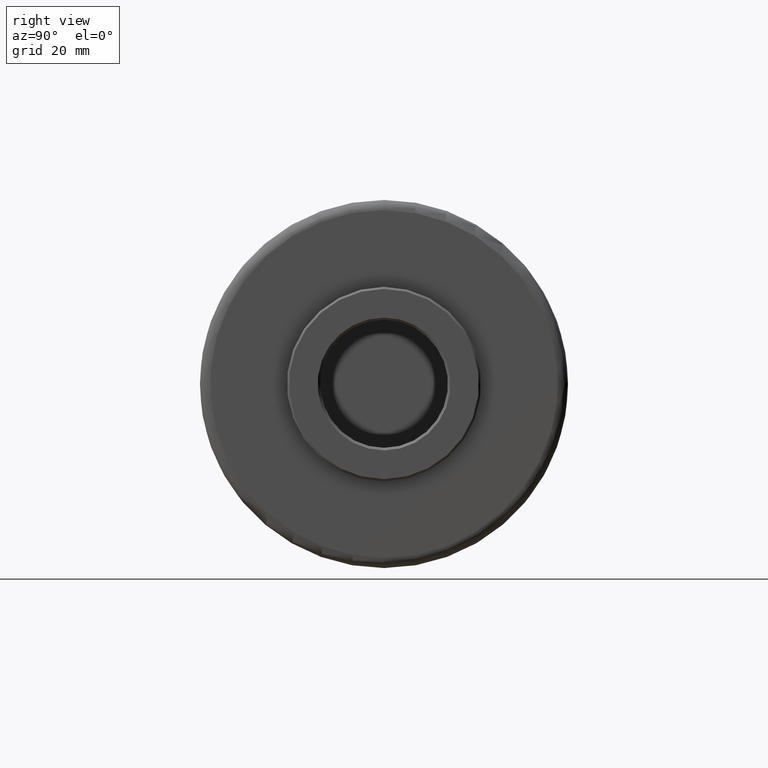
[diagram: clean part render]
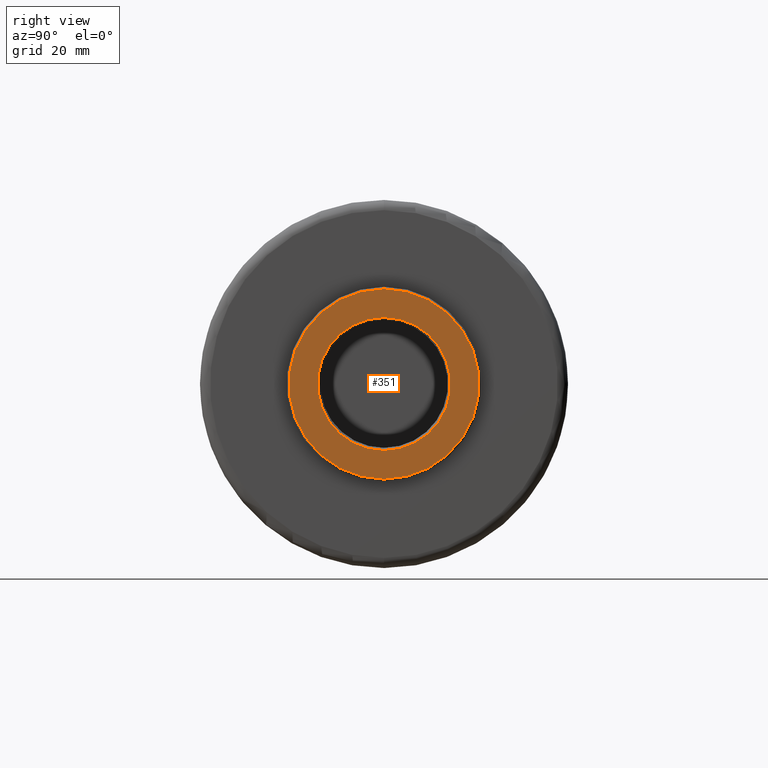
[diagram: same view with one face highlighted and labeled with its STEP entity id]
A machine part, right view. The second image highlights one B-rep face of the part: STEP entity #351.
In plain terms, the highlighted planar face has unit normal (1, -0, 0).
Its self-contained STEP definition (entity closure, byte-faithful):
#65 = DIRECTION ( 'NONE',  ( 0.0000000000000000000, 0.0000000000000000000, 1.000000000000000000 ) ) ;
#89 = DIRECTION ( 'NONE',  ( 1.000000000000000000, -0.0000000000000000000, 0.0000000000000000000 ) ) ;
#93 = PLANE ( 'NONE',  #666 ) ;
#128 = EDGE_CURVE ( 'NONE', #1260, #1362, #534, .T. ) ;
#209 = DIRECTION ( 'NONE',  ( -1.000000000000000000, 0.0000000000000000000, 0.0000000000000000000 ) ) ;
#265 = EDGE_LOOP ( 'NONE', ( #1128, #367 ) ) ;
#315 = CARTESIAN_POINT ( 'NONE',  ( 100.5000000000000000, 0.0000000000000000000, 0.0000000000000000000 ) ) ;
#327 = ORIENTED_EDGE ( 'NONE', *, *, #346, .F. ) ;
#346 = EDGE_CURVE ( 'NONE', #1238, #356, #1201, .T. ) ;
#351 = ADVANCED_FACE ( 'NONE', ( #354, #887 ), #93, .T. ) ;
#354 = FACE_BOUND ( 'NONE', #265, .T. ) ;
#356 = VERTEX_POINT ( 'NONE', #1371 ) ;
#367 = ORIENTED_EDGE ( 'NONE', *, *, #1222, .T. ) ;
#430 = DIRECTION ( 'NONE',  ( -1.000000000000000000, 0.0000000000000000000, -0.0000000000000000000 ) ) ;
#436 = CARTESIAN_POINT ( 'NONE',  ( 100.5000000000000000, 1.592040838891555700E-015, 12.99999999999997200 ) ) ;
#439 = CARTESIAN_POINT ( 'NONE',  ( 100.5000000000000000, 0.0000000000000000000, 0.0000000000000000000 ) ) ;
#506 = CARTESIAN_POINT ( 'NONE',  ( 100.5000000000000300, 0.0000000000000000000, 0.0000000000000000000 ) ) ;
#534 = CIRCLE ( 'NONE', #1230, 12.99999999999997200 ) ;
#556 = CARTESIAN_POINT ( 'NONE',  ( 100.5000000000000000, -18.82320000000000300, 18.82320000000000300 ) ) ;
#624 = AXIS2_PLACEMENT_3D ( 'NONE', #732, #209, #65 ) ;
#666 = AXIS2_PLACEMENT_3D ( 'NONE', #556, #89, #826 ) ;
#723 = CARTESIAN_POINT ( 'NONE',  ( 100.5000000000000000, 0.0000000000000000000, -12.99999999999997200 ) ) ;
#732 = CARTESIAN_POINT ( 'NONE',  ( 100.5000000000000300, 0.0000000000000000000, 0.0000000000000000000 ) ) ;
#733 = AXIS2_PLACEMENT_3D ( 'NONE', #506, #1348, #780 ) ;
#780 = DIRECTION ( 'NONE',  ( 0.0000000000000000000, 0.0000000000000000000, 1.000000000000000000 ) ) ;
#826 = DIRECTION ( 'NONE',  ( 0.0000000000000000000, 0.0000000000000000000, -1.000000000000000000 ) ) ;
#887 = FACE_OUTER_BOUND ( 'NONE', #1176, .T. ) ;
#897 = ORIENTED_EDGE ( 'NONE', *, *, #1026, .F. ) ;
#952 = DIRECTION ( 'NONE',  ( 0.0000000000000000000, 0.0000000000000000000, -1.000000000000000000 ) ) ;
#954 = DIRECTION ( 'NONE',  ( 0.0000000000000000000, 0.0000000000000000000, -1.000000000000000000 ) ) ;
#1026 = EDGE_CURVE ( 'NONE', #356, #1238, #1304, .T. ) ;
#1126 = CIRCLE ( 'NONE', #1233, 12.99999999999997200 ) ;
#1128 = ORIENTED_EDGE ( 'NONE', *, *, #128, .T. ) ;
#1151 = CARTESIAN_POINT ( 'NONE',  ( 100.5000000000000300, 0.0000000000000000000, 18.59999999999997300 ) ) ;
#1176 = EDGE_LOOP ( 'NONE', ( #327, #897 ) ) ;
#1201 = CIRCLE ( 'NONE', #624, 18.59999999999997300 ) ;
#1222 = EDGE_CURVE ( 'NONE', #1362, #1260, #1126, .T. ) ;
#1230 = AXIS2_PLACEMENT_3D ( 'NONE', #315, #430, #954 ) ;
#1233 = AXIS2_PLACEMENT_3D ( 'NONE', #439, #1365, #952 ) ;
#1238 = VERTEX_POINT ( 'NONE', #1151 ) ;
#1260 = VERTEX_POINT ( 'NONE', #723 ) ;
#1304 = CIRCLE ( 'NONE', #733, 18.59999999999997300 ) ;
#1348 = DIRECTION ( 'NONE',  ( -1.000000000000000000, 0.0000000000000000000, 0.0000000000000000000 ) ) ;
#1362 = VERTEX_POINT ( 'NONE', #436 ) ;
#1365 = DIRECTION ( 'NONE',  ( -1.000000000000000000, 0.0000000000000000000, -0.0000000000000000000 ) ) ;
#1371 = CARTESIAN_POINT ( 'NONE',  ( 100.5000000000000300, 2.302335982397022300E-015, -18.59999999999997300 ) ) ;